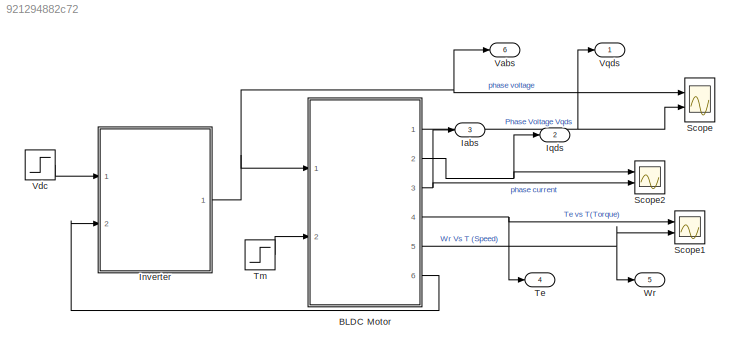
MODEL slx_921294882c72
KIND model
CONFIG AbsTol = auto
CONFIG EnableMultiTasking = off
CONFIG FixedStep = auto
CONFIG MaxStep = auto
CONFIG MinStep = auto
CONFIG RelTol = 1e-3
CONFIG SampleTimeConstraint = Unconstrained
CONFIG SolverName = VariableStepAuto
CONFIG StartTime = 0.0
CONFIG StopTime = 10.0
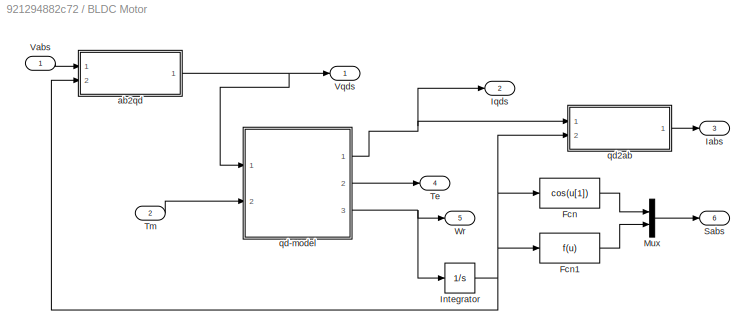
BLOCK [SubSystem] BLDC Motor 
  Ports = [2, 6]
  RequestExecContextInheritance = off
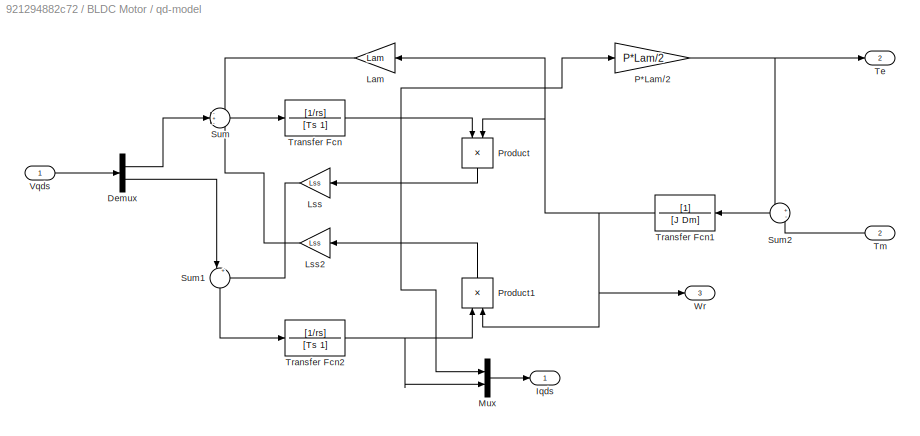
BLOCK [SubSystem] BLDC Motor / qd-model
  Ports = [2, 3]
  RequestExecContextInheritance = off
BLOCK [Demux] BLDC Motor / qd-model/Demux
  Outputs = 2
  Ports = [1, 2]
BLOCK [Outport] BLDC Motor / qd-model/Iqds
BLOCK [Gain] BLDC Motor / qd-model/Lam
  Gain = Lam
BLOCK [Gain] BLDC Motor / qd-model/Lss
  Gain = Lss
BLOCK [Gain] BLDC Motor / qd-model/Lss2
  Gain = Lss
BLOCK [Mux] BLDC Motor / qd-model/Mux
  DisplayOption = bar
  Inputs = 2
  Ports = [2, 1]
BLOCK [Gain] BLDC Motor / qd-model/P*Lam//2
  Gain = P*Lam/2
BLOCK [Product] BLDC Motor / qd-model/Product
  NameLocation = left
  Ports = [2, 1]
BLOCK [Product] BLDC Motor / qd-model/Product1
  NameLocation = right
  Ports = [2, 1]
BLOCK [Sum] BLDC Motor / qd-model/Sum
  Inputs = -+-
  Ports = [3, 1]
BLOCK [Sum] BLDC Motor / qd-model/Sum1
  Inputs = |++
  NameLocation = left
  Ports = [2, 1]
BLOCK [Sum] BLDC Motor / qd-model/Sum2
  Inputs = +-
  Ports = [2, 1]
BLOCK [Outport] BLDC Motor / qd-model/Te
  Port = 2
BLOCK [Inport] BLDC Motor / qd-model/Tm
  Port = 2
BLOCK [TransferFcn] BLDC Motor / qd-model/Transfer Fcn
  Denominator = [Ts 1]
  Numerator = [1/rs]
BLOCK [TransferFcn] BLDC Motor / qd-model/Transfer Fcn1
  Denominator = [J Dm]
BLOCK [TransferFcn] BLDC Motor / qd-model/Transfer Fcn2
  Denominator = [Ts 1]
  Numerator = [1/rs]
BLOCK [Inport] BLDC Motor / qd-model/Vqds
BLOCK [Outport] BLDC Motor / qd-model/Wr
  Port = 3
BLOCK [Fcn] BLDC Motor /Fcn
  Expr = cos(u[1])
BLOCK [Fcn] BLDC Motor /Fcn1
BLOCK [Outport] BLDC Motor /Iabs
  Port = 3
BLOCK [Integrator] BLDC Motor /Integrator
  Ports = [1, 1]
BLOCK [Outport] BLDC Motor /Iqds
  Port = 2
BLOCK [Mux] BLDC Motor /Mux
  DisplayOption = bar
  Inputs = 2
  Ports = [2, 1]
BLOCK [Outport] BLDC Motor /Sabs
  Port = 6
BLOCK [Outport] BLDC Motor /Te
  Port = 4
BLOCK [Inport] BLDC Motor /Tm
  Port = 2
BLOCK [Inport] BLDC Motor /Vabs
BLOCK [Outport] BLDC Motor /Vqds
BLOCK [Outport] BLDC Motor /Wr
  Port = 5
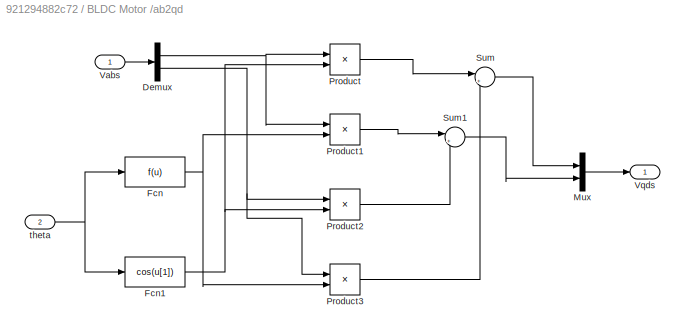
BLOCK [SubSystem] BLDC Motor /ab2qd
  Ports = [2, 1]
  RequestExecContextInheritance = off
BLOCK [Outport] BLDC Motor /ab2qd/ Vqds
BLOCK [Demux] BLDC Motor /ab2qd/Demux
  Outputs = 2
  Ports = [1, 2]
BLOCK [Fcn] BLDC Motor /ab2qd/Fcn
BLOCK [Fcn] BLDC Motor /ab2qd/Fcn1
  Expr = cos(u[1])
BLOCK [Mux] BLDC Motor /ab2qd/Mux
  DisplayOption = bar
  Inputs = 2
  Ports = [2, 1]
BLOCK [Product] BLDC Motor /ab2qd/Product
  Ports = [2, 1]
BLOCK [Product] BLDC Motor /ab2qd/Product1
  Ports = [2, 1]
BLOCK [Product] BLDC Motor /ab2qd/Product2
  Ports = [2, 1]
BLOCK [Product] BLDC Motor /ab2qd/Product3
  Ports = [2, 1]
BLOCK [Sum] BLDC Motor /ab2qd/Sum
  Inputs = |++
  Ports = [2, 1]
BLOCK [Sum] BLDC Motor /ab2qd/Sum1
  Inputs = |+-
  Ports = [2, 1]
BLOCK [Inport] BLDC Motor /ab2qd/Vabs
BLOCK [Inport] BLDC Motor /ab2qd/theta
  Port = 2
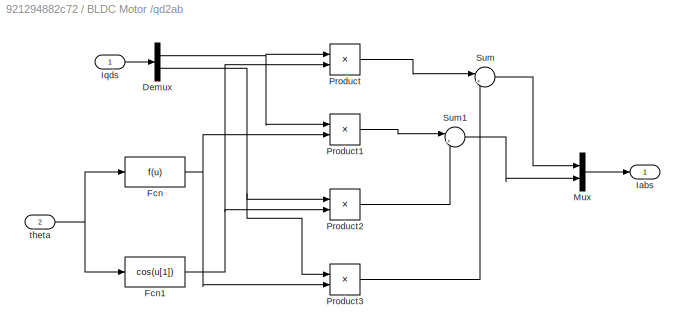
BLOCK [SubSystem] BLDC Motor /qd2ab
  Ports = [2, 1]
  RequestExecContextInheritance = off
BLOCK [Outport] BLDC Motor /qd2ab/ Iabs
BLOCK [Demux] BLDC Motor /qd2ab/Demux
  Outputs = 2
  Ports = [1, 2]
BLOCK [Fcn] BLDC Motor /qd2ab/Fcn
BLOCK [Fcn] BLDC Motor /qd2ab/Fcn1
  Expr = cos(u[1])
BLOCK [Inport] BLDC Motor /qd2ab/Iqds
BLOCK [Mux] BLDC Motor /qd2ab/Mux
  DisplayOption = bar
  Inputs = 2
  Ports = [2, 1]
BLOCK [Product] BLDC Motor /qd2ab/Product
  Ports = [2, 1]
BLOCK [Product] BLDC Motor /qd2ab/Product1
  Ports = [2, 1]
BLOCK [Product] BLDC Motor /qd2ab/Product2
  Ports = [2, 1]
BLOCK [Product] BLDC Motor /qd2ab/Product3
  Ports = [2, 1]
BLOCK [Sum] BLDC Motor /qd2ab/Sum
  Inputs = |++
  Ports = [2, 1]
BLOCK [Sum] BLDC Motor /qd2ab/Sum1
  Inputs = |+-
  Ports = [2, 1]
BLOCK [Inport] BLDC Motor /qd2ab/theta
  Port = 2
BLOCK [Outport] Iabs
  Port = 3
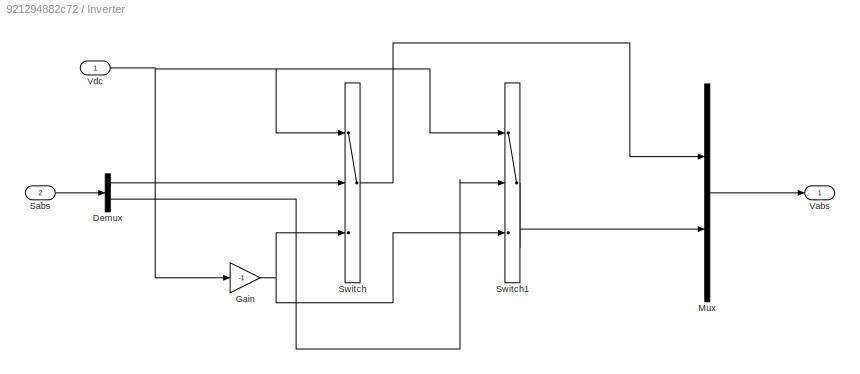
BLOCK [SubSystem] Inverter
  Ports = [2, 1]
  RequestExecContextInheritance = off
BLOCK [Demux] Inverter/Demux
  Outputs = 2
  Ports = [1, 2]
BLOCK [Gain] Inverter/Gain
  Gain = -1
BLOCK [Mux] Inverter/Mux
  DisplayOption = bar
  Inputs = 2
  Ports = [2, 1]
BLOCK [Inport] Inverter/Sabs
  Port = 2
BLOCK [Switch] Inverter/Switch
  Criteria = u2 > Threshold
  InputSameDT = off
  SaturateOnIntegerOverflow = off
BLOCK [Switch] Inverter/Switch1
  Criteria = u2 > Threshold
  InputSameDT = off
  SaturateOnIntegerOverflow = off
BLOCK [Outport] Inverter/Vabs
BLOCK [Inport] Inverter/Vdc
BLOCK [Outport] Iqds
  Port = 2
BLOCK [Scope] Scope
  Floating = off
  NumInputPorts = 2
  Ports = [2]
  ScopeSpecificationString = Simulink.scopes.TimeScopeBlockCfg('CurrentConfiguration', extmgr.ConfigurationSet(extmgr.Configuration('Core','General UI',true,'FigureColor',[1 1 1]),extmgr.Configuration('Core','Source UI',true),extmgr.Configuration('Sources','WiredSimulink',true,'DataLoggingVariableName','ScopeData1'),extmgr.Configuration('Visuals','Time Domain',true,'SerializedDisplays',{struct('MinYLimReal','-7.81066','MaxYLi...<+2607ch>
BLOCK [Scope] Scope1
  Floating = off
  NumInputPorts = 2
  Ports = [2]
  ScopeSpecificationString = Simulink.scopes.TimeScopeBlockCfg('CurrentConfiguration', extmgr.ConfigurationSet(extmgr.Configuration('Core','General UI',true,'FigureColor',[1 1 1]),extmgr.Configuration('Core','Source UI',true),extmgr.Configuration('Sources','WiredSimulink',true,'DataLoggingVariableName','ScopeData2'),extmgr.Configuration('Visuals','Time Domain',true,'SerializedDisplays',{struct('MinYLimReal','-0.00689','MaxYLi...<+2253ch>
BLOCK [Scope] Scope2
  Floating = off
  NumInputPorts = 2
  Ports = [2]
  ScopeSpecificationString = Simulink.scopes.TimeScopeBlockCfg('CurrentConfiguration', extmgr.ConfigurationSet(extmgr.Configuration('Core','General UI',true),extmgr.Configuration('Core','Source UI',true),extmgr.Configuration('Sources','WiredSimulink',true),extmgr.Configuration('Visuals','Time Domain',true,'SerializedDisplays',{struct('MinYLimReal','-1.21519','MaxYLimReal','1.52373','YLabelReal','','MinYLimMag','0.00000','MaxY...<+2068ch>
BLOCK [Outport] Te
  Port = 4
BLOCK [Step] Tm
  After = 3.53e-3
  SampleTime = 0
  Time = 0.5
BLOCK [Outport] Vabs
  Port = 6
BLOCK [Step] Vdc
  After = 6
  SampleTime = 0
  Time = 0.05
BLOCK [Outport] Vqds
BLOCK [Outport] Wr
  Port = 5
LINE BLDC Motor / qd-model/Demux:1 -> BLDC Motor / qd-model/Sum:2
LINE BLDC Motor / qd-model/Demux:2 -> BLDC Motor / qd-model/Sum1:1
LINE BLDC Motor / qd-model/Lam:1 -> BLDC Motor / qd-model/Sum:1
LINE BLDC Motor / qd-model/Lss2:1 -> BLDC Motor / qd-model/Sum:3
LINE BLDC Motor / qd-model/Lss:1 -> BLDC Motor / qd-model/Sum1:2
LINE BLDC Motor / qd-model/Mux:1 -> BLDC Motor / qd-model/Iqds:1
NET BLDC Motor / qd-model/P*Lam//2:1 -> BLDC Motor / qd-model/Sum2:1, BLDC Motor / qd-model/Te:1
LINE BLDC Motor / qd-model/Product1:1 -> BLDC Motor / qd-model/Lss2:1
LINE BLDC Motor / qd-model/Product:1 -> BLDC Motor / qd-model/Lss:1
LINE BLDC Motor / qd-model/Sum1:1 -> BLDC Motor / qd-model/Transfer Fcn2:1
LINE BLDC Motor / qd-model/Sum2:1 -> BLDC Motor / qd-model/Transfer Fcn1:1
LINE BLDC Motor / qd-model/Sum:1 -> BLDC Motor / qd-model/Transfer Fcn:1
LINE BLDC Motor / qd-model/Tm:1 -> BLDC Motor / qd-model/Sum2:2
NET BLDC Motor / qd-model/Transfer Fcn1:1 -> BLDC Motor / qd-model/Lam:1, BLDC Motor / qd-model/Product1:2, BLDC Motor / qd-model/Product:2, BLDC Motor / qd-model/Wr:1
NET BLDC Motor / qd-model/Transfer Fcn2:1 -> BLDC Motor / qd-model/Mux:2, BLDC Motor / qd-model/Product1:1
NET BLDC Motor / qd-model/Transfer Fcn:1 -> BLDC Motor / qd-model/Mux:1, BLDC Motor / qd-model/P*Lam//2:1, BLDC Motor / qd-model/Product:1
LINE BLDC Motor / qd-model/Vqds:1 -> BLDC Motor / qd-model/Demux:1
NET BLDC Motor / qd-model:1 -> BLDC Motor /Iqds:1, BLDC Motor /qd2ab:1
LINE BLDC Motor / qd-model:2 -> BLDC Motor /Te:1
NET BLDC Motor / qd-model:3 -> BLDC Motor /Integrator:1, BLDC Motor /Wr:1
LINE BLDC Motor /Fcn1:1 -> BLDC Motor /Mux:2
LINE BLDC Motor /Fcn:1 -> BLDC Motor /Mux:1
NET BLDC Motor /Integrator:1 -> BLDC Motor /Fcn1:1, BLDC Motor /Fcn:1, BLDC Motor /ab2qd:2, BLDC Motor /qd2ab:2
LINE BLDC Motor /Mux:1 -> BLDC Motor /Sabs:1
LINE BLDC Motor /Tm:1 -> BLDC Motor / qd-model:2
LINE BLDC Motor /Vabs:1 -> BLDC Motor /ab2qd:1
NET BLDC Motor /ab2qd/Demux:1 -> BLDC Motor /ab2qd/Product1:1, BLDC Motor /ab2qd/Product:1
NET BLDC Motor /ab2qd/Demux:2 -> BLDC Motor /ab2qd/Product2:1, BLDC Motor /ab2qd/Product3:1
NET BLDC Motor /ab2qd/Fcn1:1 -> BLDC Motor /ab2qd/Product2:2, BLDC Motor /ab2qd/Product:2
NET BLDC Motor /ab2qd/Fcn:1 -> BLDC Motor /ab2qd/Product1:2, BLDC Motor /ab2qd/Product3:2
LINE BLDC Motor /ab2qd/Mux:1 -> BLDC Motor /ab2qd/ Vqds:1
LINE BLDC Motor /ab2qd/Product1:1 -> BLDC Motor /ab2qd/Sum1:1
LINE BLDC Motor /ab2qd/Product2:1 -> BLDC Motor /ab2qd/Sum1:2
LINE BLDC Motor /ab2qd/Product3:1 -> BLDC Motor /ab2qd/Sum:2
LINE BLDC Motor /ab2qd/Product:1 -> BLDC Motor /ab2qd/Sum:1
LINE BLDC Motor /ab2qd/Sum1:1 -> BLDC Motor /ab2qd/Mux:2
LINE BLDC Motor /ab2qd/Sum:1 -> BLDC Motor /ab2qd/Mux:1
LINE BLDC Motor /ab2qd/Vabs:1 -> BLDC Motor /ab2qd/Demux:1
NET BLDC Motor /ab2qd/theta:1 -> BLDC Motor /ab2qd/Fcn1:1, BLDC Motor /ab2qd/Fcn:1
NET BLDC Motor /ab2qd:1 -> BLDC Motor / qd-model:1, BLDC Motor /Vqds:1
NET BLDC Motor /qd2ab/Demux:1 -> BLDC Motor /qd2ab/Product1:1, BLDC Motor /qd2ab/Product:1
NET BLDC Motor /qd2ab/Demux:2 -> BLDC Motor /qd2ab/Product2:1, BLDC Motor /qd2ab/Product3:1
NET BLDC Motor /qd2ab/Fcn1:1 -> BLDC Motor /qd2ab/Product2:2, BLDC Motor /qd2ab/Product:2
NET BLDC Motor /qd2ab/Fcn:1 -> BLDC Motor /qd2ab/Product1:2, BLDC Motor /qd2ab/Product3:2
LINE BLDC Motor /qd2ab/Iqds:1 -> BLDC Motor /qd2ab/Demux:1
LINE BLDC Motor /qd2ab/Mux:1 -> BLDC Motor /qd2ab/ Iabs:1
LINE BLDC Motor /qd2ab/Product1:1 -> BLDC Motor /qd2ab/Sum1:1
LINE BLDC Motor /qd2ab/Product2:1 -> BLDC Motor /qd2ab/Sum1:2
LINE BLDC Motor /qd2ab/Product3:1 -> BLDC Motor /qd2ab/Sum:2
LINE BLDC Motor /qd2ab/Product:1 -> BLDC Motor /qd2ab/Sum:1
LINE BLDC Motor /qd2ab/Sum1:1 -> BLDC Motor /qd2ab/Mux:2
LINE BLDC Motor /qd2ab/Sum:1 -> BLDC Motor /qd2ab/Mux:1
NET BLDC Motor /qd2ab/theta:1 -> BLDC Motor /qd2ab/Fcn1:1, BLDC Motor /qd2ab/Fcn:1
LINE BLDC Motor /qd2ab:1 -> BLDC Motor /Iabs:1
NET BLDC Motor :1 -> Scope:2, Vqds:1
NET BLDC Motor :2 -> Iqds:1, Scope2:1
NET BLDC Motor :3 -> Iabs:1, Scope2:2
NET BLDC Motor :4 -> Scope1:1, Te:1
NET BLDC Motor :5 -> Scope1:2, Wr:1
LINE BLDC Motor :6 -> Inverter:2
LINE Inverter/Demux:1 -> Inverter/Switch:2
LINE Inverter/Demux:2 -> Inverter/Switch1:2
NET Inverter/Gain:1 -> Inverter/Switch1:3, Inverter/Switch:3
LINE Inverter/Mux:1 -> Inverter/Vabs:1
LINE Inverter/Sabs:1 -> Inverter/Demux:1
LINE Inverter/Switch1:1 -> Inverter/Mux:2
LINE Inverter/Switch:1 -> Inverter/Mux:1
NET Inverter/Vdc:1 -> Inverter/Gain:1, Inverter/Switch1:1, Inverter/Switch:1
NET Inverter:1 -> BLDC Motor :1, Scope:1, Vabs:1
LINE Tm:1 -> BLDC Motor :2
LINE Vdc:1 -> Inverter:1
note: NET lines group one-source signal fan-out (src -> all destinations, sorted); 1:1 wires keep LINE
